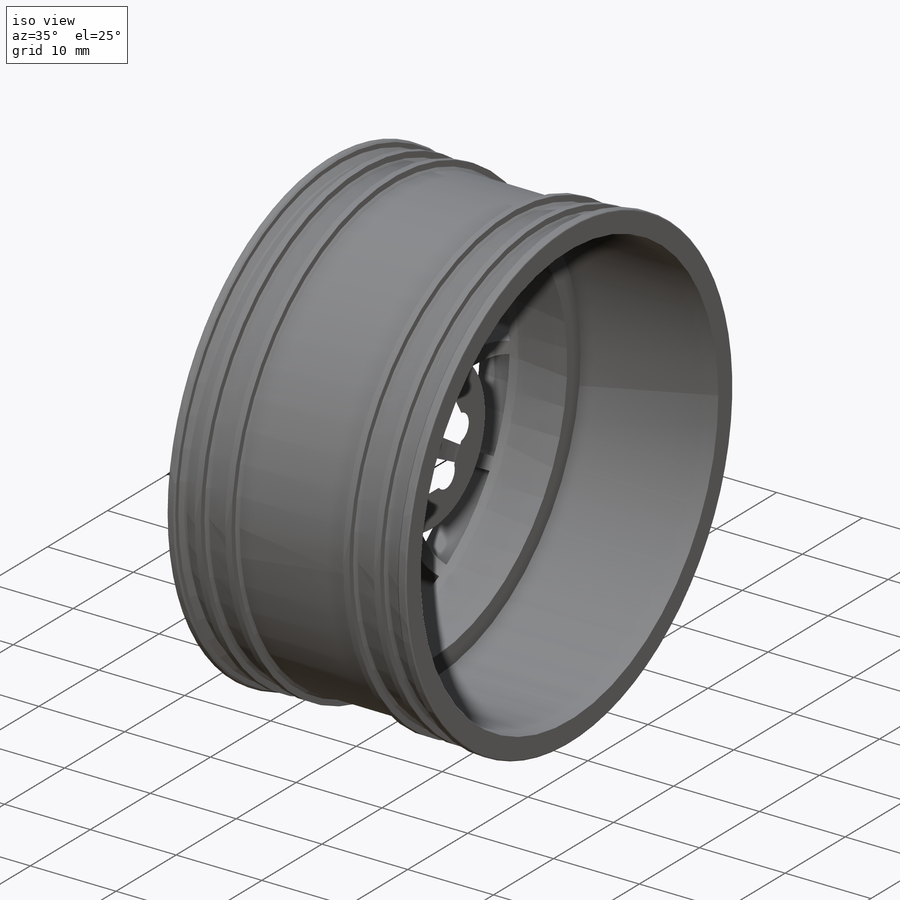
[diagram: iso view]
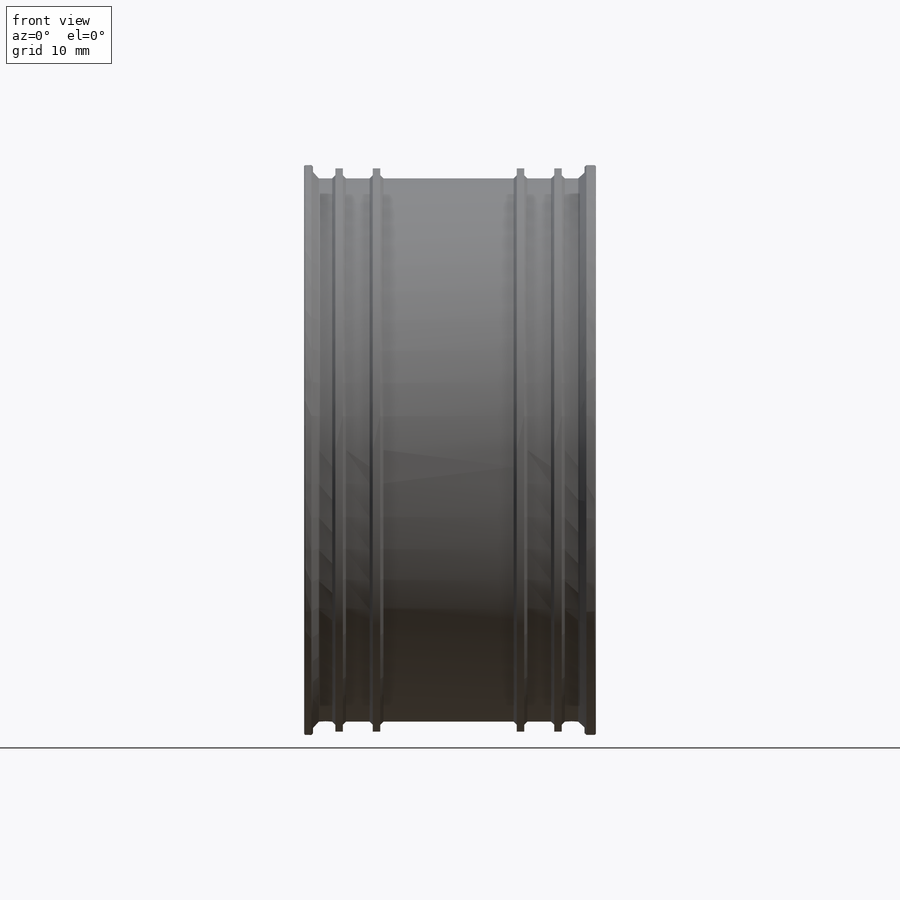
[diagram: front view]
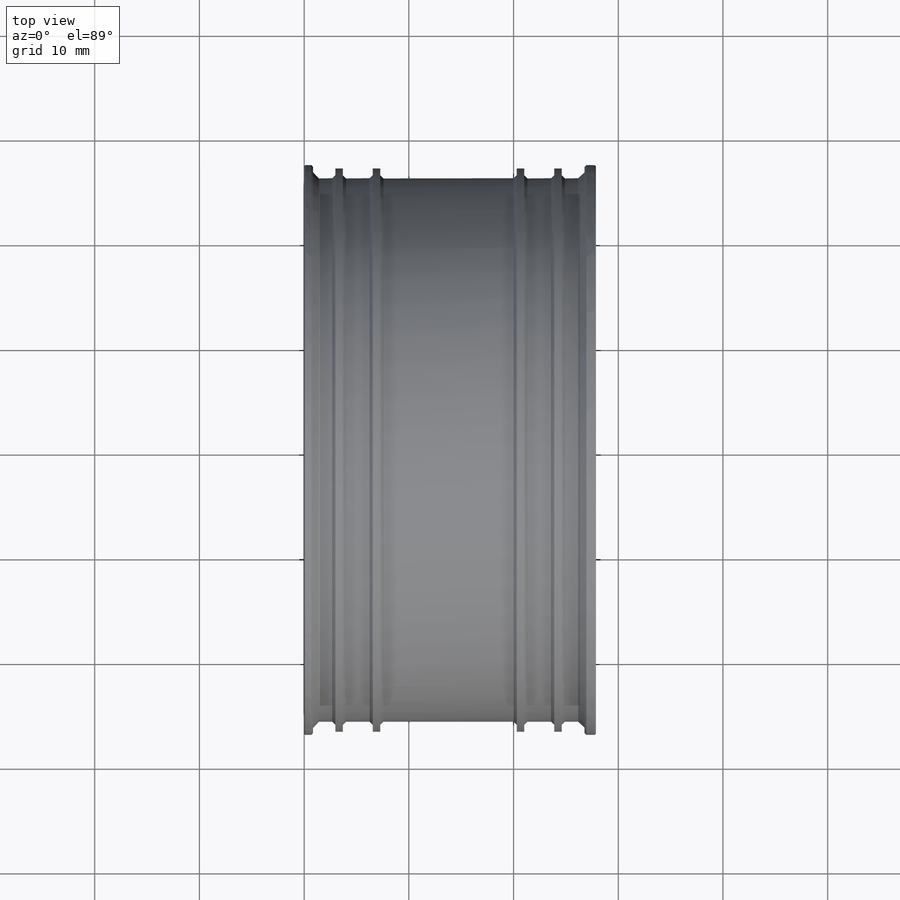
[diagram: top view]
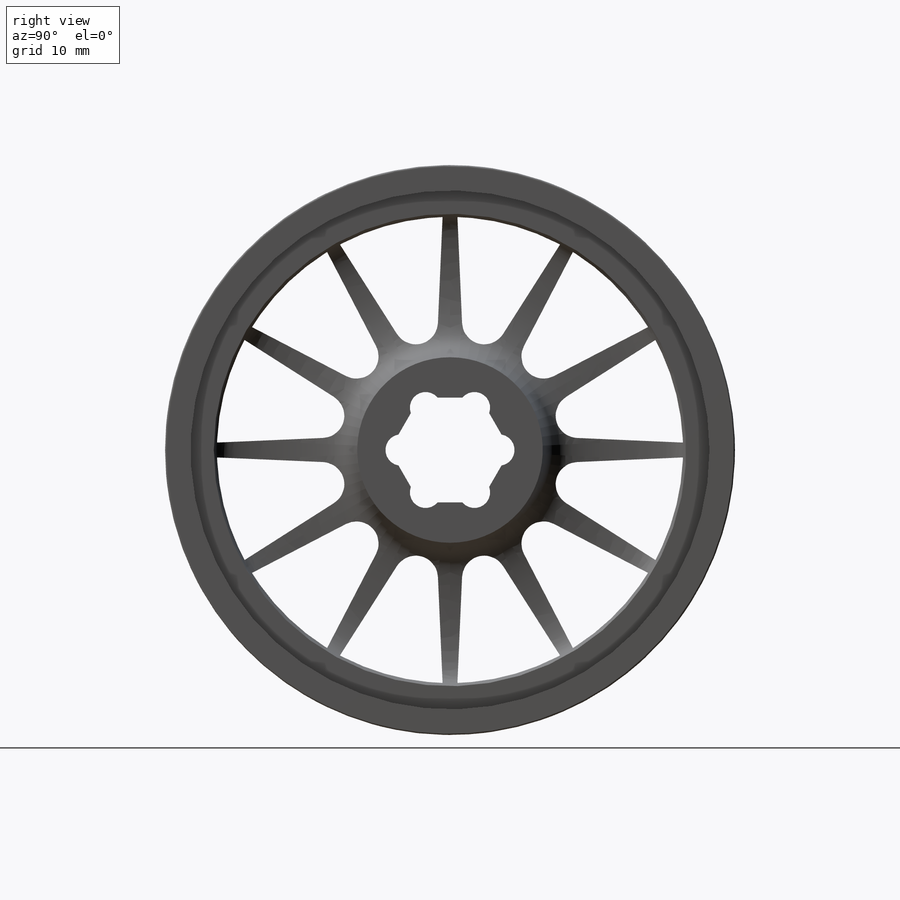
[diagram: right view]
SOLIDWORKS PART (.sldprt)
format: sldprt  version: not decoded by parser v0  size: 2,406,400 bytes
history: native  units: mm
features: dome x351, sketch x11, cut_extrude x6, fillet x2, material x1, extrude x1, sweep x1 + 1 further entry (+10 scaffold rows collapsed)
feature tree (384):
  scaffold x10  (default folders/planes/origin — collapsed)
  material  "6061-T6 (SS)"
  "Annotations"  RD1=8mm RD2=47.625mm RD4=18.448701mm RD5=1.761048mm RD6=0.884766mm RD8=27.857143mm RD9=17.717379mm RD10=7.745821mm RD11=2.244998mm RD3=49.556665mm RD7=2.142857mm RD12=2.244998mm
  sketch  "Sketch4"  dims[D1=170.0mm]
  sketch  "Sketch1"  dims[D1=~33.830972mm]
  extrude  "Extrude1"  Depth=195mm
  sketch  "Sketch8"  dims[D1=~168.432994mm]
  sketch  "Sketch3"
  cut_extrude  "Extrude4"  Depth=112.4mm
  sketch  "Sketch2"  dims[c1.D1=15.0mm c1.D2=4.0mm c1.D3=~170.112926mm c1.D6=~73.624807mm c2.D1=~87.706638deg c2.D4=~80.782612mm c3.D4=2.5deg c3.D5=~80.214086mm c4.D5=2.5deg c4.D6=8.0mm c4.D4=~80.413312mm c5.D4=17.5deg c5.D5=~164.27988mm c6.D5=17.5deg c6.D6=71.0mm c6.D1=~140.662285deg c7.D1=12.0]
  cut_extrude  "Extrude3"  Depth=37mm
  sketch  "Sketch5"  dims[c1.D1=4.0mm c1.D2=4.0mm c1.D3=1.0mm c1.D4=1.0mm c1.D6=2.0mm c1.D7=2.0mm c1.D8=1.5mm c1.D13=2.0mm c1.D14=4.0mm c1.D15=2.0mm c1.D5=~6.879835mm c2.D4=170.0mm c2.D9=1.0mm c2.D10=45.0deg c3.D4=6.88mm c3.D8=25.0mm c3.D11=25.0mm c4.D4=5.0mm c4.D5=20.0mm c4.D12=35.0mm c4.D2=~2.731103mm c5.D2=45.0deg c5.D6=3.0mm c5.D7=15.0mm c5.D1=~153.163377deg]
  sketch  "revolvepath"  dims[D1=~137.486092mm]
  sweep  "Cut-Sweep1"
  fillet  "Fillet7"  Radius=4mm
  sketch  "Sketch9"
  cut_extrude  "Extrude8"  Depth=6.2mm
  sketch  "Sketch10"  dims[D1=56.0mm]
  cut_extrude  "Extrude9"  [1 undecoded]
  fillet  "Fillet8"  Radius=3.5mm
  sketch  "Sketch11"  dims[c1.D2=1.5mm c1.D1=10.0mm c2.D2=120.0deg c2.D3=120.0deg c3.D2=~149.966804deg]
  cut_extrude  "Extrude10"  Depth=4mm
  dome  "Dome2"  flange_len_value=0 Associativity_IDs=0mm
  dome  "441f0961-651f-49cb-9117-8f31b8b877ae"  Associativity_IDs=0mm flange_len_value=0
  dome  "29bc92b0-dcc1-4f03-993c-061ac77e1b1a"  Associativity_IDs=0mm flange_len_value=0
  dome  "d1274d9a-4b19-4a93-a6c9-308393655e5a"  Associativity_IDs=0mm flange_len_value=0
  dome  "686aff30-a80f-465a-bb3e-946cdc2581d9"  Associativity_IDs=0mm flange_len_value=0
  dome  "6bf76ad0-d751-44d5-badf-b3861506b027"  Associativity_IDs=0mm flange_len_value=0
  dome  "a5d04f46-f9f5-437d-baa5-b426f78a203f"  Associativity_IDs=0mm flange_len_value=0
  dome  "0c020333-fe93-491c-8d8d-36da5a8d959e"  Associativity_IDs=0mm flange_len_value=0
  dome  "642d2594-b939-400e-8481-eccdaaa43092"  Associativity_IDs=0mm flange_len_value=0
  dome  "f6b69932-7eee-450b-87f0-c99a79508fd7"  Associativity_IDs=0mm flange_len_value=0
  dome  "c349b4dd-7812-4419-9773-ee145f4e4651"  Associativity_IDs=0mm flange_len_value=0
  dome  "c6f015e3-48f5-4fc7-b5e1-688ad483d509"  Associativity_IDs=0mm flange_len_value=0
  dome  "c2b35939-13c7-4dd7-a8b6-46e214523427"  Associativity_IDs=0mm flange_len_value=0
  dome  "7e8419ec-de19-45f4-acdf-939b1d0114e2"  Associativity_IDs=0mm flange_len_value=0
  dome  "996d2459-04e3-457d-9d61-327625e0fcfa"  Associativity_IDs=0mm flange_len_value=0
  dome  "10cbfb27-530e-4e32-91f8-0297ef27286f"  Associativity_IDs=0mm flange_len_value=0
  dome  "6ce0f54d-8b11-40c5-bed7-20aae8880ab0"  Associativity_IDs=0mm flange_len_value=0
  dome  "b3d69100-b4dd-4a40-a3b0-3afe6f3f5f3d"  Associativity_IDs=0mm flange_len_value=0
  dome  "8b446f9a-0605-4b56-b435-a0f1dbd9d449"  Associativity_IDs=0mm flange_len_value=0
  dome  "8fb94fb5-51c3-414d-8ec2-e8d2f9eff810"  Associativity_IDs=0mm flange_len_value=0
  dome  "a3ca3d10-c192-4d10-aa91-f08ec35e1f8a"  Associativity_IDs=0mm flange_len_value=0
  dome  "b7ca735d-e5dd-4693-bbef-3c3eeb0a8c48"  Associativity_IDs=0mm flange_len_value=0
  dome  "7581d3fe-6caf-4d03-85a5-7d14cd81cb71"  Associativity_IDs=0mm flange_len_value=0
  dome  "b8ee996f-d79e-44b4-89d3-93804d2254ec"  Associativity_IDs=0mm flange_len_value=0
  dome  "0a65213a-ad6c-4ee9-88fc-85f67524a7c7"  Associativity_IDs=0mm flange_len_value=0
  dome  "01a3d823-4db5-4d63-9a71-027bc7e92ebf"  Associativity_IDs=0mm flange_len_value=0
  dome  "5ac466fc-19be-4218-8a12-f514a31bfdb5"  Associativity_IDs=0mm flange_len_value=0
  dome  "6d3b4367-b320-4597-88e8-1ec8715cedd2"  Associativity_IDs=0mm flange_len_value=0
  dome  "0098a1e7-0f93-40ff-89c3-a6abbb8216e0"  Associativity_IDs=0mm flange_len_value=0
  dome  "32c818c5-3953-4e36-a03f-cbe104db6e1a"  Associativity_IDs=0mm flange_len_value=0
  dome  "2325bd9b-d257-43e4-ae78-37c28ae0a234"  Associativity_IDs=0mm flange_len_value=0
  dome  "7fc22041-49a7-4c30-9b77-b0269f3ffb1b"  Associativity_IDs=0mm flange_len_value=0
  dome  "6ac564c5-d373-45a9-9a24-a36c74a3b0ce"  Associativity_IDs=0mm flange_len_value=0
  dome  "be69b98d-fe51-42c0-b9c4-7cfa3f238040"  Associativity_IDs=0mm flange_len_value=0
  dome  "b5d3738d-48ac-4cb9-9ea5-db590e04cb36"  Associativity_IDs=0mm flange_len_value=0
  dome  "8bc20a6c-3d10-4d04-9cb4-94fce7827ee9"  Associativity_IDs=0mm flange_len_value=0
  dome  "82fdf201-afe2-435b-b703-c1de3f0a6804"  Associativity_IDs=0mm flange_len_value=0
  dome  "62242794-c18a-4ec6-8522-430144617661"  Associativity_IDs=0mm flange_len_value=0
  dome  "9944f1d6-d8f9-43d1-8e72-abfad806cc72"  Associativity_IDs=0mm flange_len_value=0
  dome  "4b7526fb-70c3-4609-84d8-b86a3614cce3"  Associativity_IDs=0mm flange_len_value=0
  dome  "fd778161-2687-44e2-a3c4-1987d205c238"  Associativity_IDs=0mm flange_len_value=0
  dome  "e49001b8-1502-4e7d-b5b6-f72a32777cea"  Associativity_IDs=0mm flange_len_value=0
  dome  "0af3af82-3166-431f-b091-2009528ef33a"  Associativity_IDs=0mm flange_len_value=0
  dome  "c3145659-1cc5-4a2c-8b7d-520d1e343f59"  Associativity_IDs=0mm flange_len_value=0
  dome  "49ba60ca-8e3d-42fc-9431-8bc827b5c2b7"  Associativity_IDs=0mm flange_len_value=0
  dome  "56b14bf9-7e56-4ada-bd04-fd9a301b5e33"  Associativity_IDs=0mm flange_len_value=0
  dome  "d717c7b2-8ffe-4404-ac5b-6bc6ccd34232"  Associativity_IDs=0mm flange_len_value=0
  dome  "07ec9548-d183-4f5d-befa-ab3347766663"  Associativity_IDs=0mm flange_len_value=0
  dome  "d797b379-ff2a-4d49-ba77-77bfd585faf2"  Associativity_IDs=0mm flange_len_value=0
  dome  "ea0b18ba-e403-42ed-95c2-594196dec718"  Associativity_IDs=0mm flange_len_value=0
  dome  "41e03ef6-20ab-4c54-8114-964219d2c1e9"  Associativity_IDs=0mm flange_len_value=0
  dome  "b8f2c565-2882-422c-98ba-9d03910d1ad5"  Associativity_IDs=0mm flange_len_value=0
  dome  "93e6778b-b5de-4d69-abcf-6d1c4df73b0f"  Associativity_IDs=0mm flange_len_value=0
  dome  "c505cbed-9ded-4aff-933b-3b56120c1fbe"  Associativity_IDs=0mm flange_len_value=0
  dome  "ca823355-8a0c-4002-a038-5ecdc217e0d1"  Associativity_IDs=0mm flange_len_value=0
  dome  "c00fc655-1a37-4bc8-b3ee-25379f988daf"  Associativity_IDs=0mm flange_len_value=0
  dome  "06600932-f906-435e-8d5e-3bde551a4206"  Associativity_IDs=0mm flange_len_value=0
  dome  "903390b9-a987-4fce-891a-7173bedb5ebb"  Associativity_IDs=0mm flange_len_value=0
  dome  "1ef13777-858f-42a5-b838-eb694d75eea2"  Associativity_IDs=0mm flange_len_value=0
  dome  "f42d59cc-c0bc-499c-89f2-cf513d031512"  Associativity_IDs=0mm flange_len_value=0
  dome  "a5f93803-8979-4caf-bcee-9481e462a3a4"  Associativity_IDs=0mm flange_len_value=0
  dome  "f387ffbd-8663-4d9d-997e-e2b80b9c2c69"  Associativity_IDs=0mm flange_len_value=0
  dome  "72999618-668d-4c23-aadd-0dfb3ab83527"  Associativity_IDs=0mm flange_len_value=0
  dome  "cc5abce0-e4a8-4a4f-ad45-911fd0832419"  Associativity_IDs=0mm flange_len_value=0
  dome  "0da8d853-1dea-4a9c-ae7e-3f8c5680d90a"  Associativity_IDs=0mm flange_len_value=0
  dome  "283f8df6-041a-410b-b1a6-e34b71d293cf"  Associativity_IDs=0mm flange_len_value=0
  dome  "a3e21488-8924-4b42-a0f0-b9064b6ab2d7"  Associativity_IDs=0mm flange_len_value=0
  dome  "e4873eac-926e-47ec-8aab-56beeb6cff14"  Associativity_IDs=0mm flange_len_value=0
  dome  "b76baeea-ac96-417b-9749-19c78ddda954"  Associativity_IDs=0mm flange_len_value=0
  dome  "b8b8a1cf-7bd9-4dbe-96af-b6a144a624de"  Associativity_IDs=0mm flange_len_value=0
  dome  "cf157c49-9405-43d7-9368-be55cc509270"  Associativity_IDs=0mm flange_len_value=0
  dome  "1de3f1e8-79df-451a-95d6-58177a4c68cc"  Associativity_IDs=0mm flange_len_value=0
  dome  "e9d265a3-eb98-434f-bb6a-433797b671d4"  Associativity_IDs=0mm flange_len_value=0
  dome  "b7090a62-974b-4b87-81e7-996b2087cb2f"  Associativity_IDs=0mm flange_len_value=0
  dome  "31fed86a-ff44-44e4-8ba7-e50f70828e04"  Associativity_IDs=0mm flange_len_value=0
  dome  "edf19ac2-0f1e-4ba8-85a9-15eb5c229eb4"  Associativity_IDs=0mm flange_len_value=0
  dome  "39ed3134-75d8-44ef-9948-b30696e2050c"  Associativity_IDs=0mm flange_len_value=0
  dome  "471a8a43-c5c7-49c7-8239-05dc0572a477"  Associativity_IDs=0mm flange_len_value=0
  dome  "969de116-3b0d-401f-bfc8-2f3f058add09"  Associativity_IDs=0mm flange_len_value=0
  dome  "8ccba09d-495c-4ae9-aba5-9d0a17abd8af"  Associativity_IDs=0mm flange_len_value=0
  dome  "bc27af37-0ae6-452f-a703-1aef0196ff60"  Associativity_IDs=0mm flange_len_value=0
  dome  "162fcb3f-6faa-4e91-a4a8-8da13aef080c"  Associativity_IDs=0mm flange_len_value=0
  dome  "cc7f2f18-dec3-415f-b3f9-da241c9e8ef5"  Associativity_IDs=0mm flange_len_value=0
  dome  "91bcac9e-9887-4e4d-941c-eadfc649e533"  Associativity_IDs=0mm flange_len_value=0
  dome  "59ee2f94-d545-40de-a1d7-b86741fe68d1"  Associativity_IDs=0mm flange_len_value=0
  dome  "f1962a46-ca4c-422c-ba8a-bad4897affaf"  Associativity_IDs=0mm flange_len_value=0
  dome  "fc059e6c-db24-46f4-a5b9-b049d86aaba6"  Associativity_IDs=0mm flange_len_value=0
  dome  "6785821a-eb6b-4d21-8faa-b9f2163c29aa"  Associativity_IDs=0mm flange_len_value=0
  dome  "25e646d0-328e-40be-8b38-b1056238377f"  Associativity_IDs=0mm flange_len_value=0
  dome  "9f2774cc-542c-45b0-891a-7f713f0cf09e"  Associativity_IDs=0mm flange_len_value=0
  dome  "ffdeb323-6ee5-4f3b-acd0-f56884521c67"  Associativity_IDs=0mm flange_len_value=0
  dome  "3bae2f52-09bb-404a-b17c-11803787131c"  Associativity_IDs=0mm flange_len_value=0
  dome  "64647915-387c-4e53-9620-8a8c85506060"  Associativity_IDs=0mm flange_len_value=0
  dome  "3c3663fe-16d1-4737-b52e-c93e82196a2d"  Associativity_IDs=0mm flange_len_value=0
  dome  "a4b1bc25-9897-4faa-abe6-7ecde77d5d8e"  Associativity_IDs=0mm flange_len_value=0
  dome  "63489c61-a2b2-46c7-bd80-287c6843581d"  Associativity_IDs=0mm flange_len_value=0
  dome  "d8d33704-528d-4082-a717-1db611d65ba8"  Associativity_IDs=0mm flange_len_value=0
  dome  "699e8c25-399b-4104-b0a9-b5f707508785"  Associativity_IDs=0mm flange_len_value=0
  dome  "beb2d40f-a84a-4def-9faa-fb2374c85f49"  Associativity_IDs=0mm flange_len_value=0
  dome  "83ae9b1e-c9c8-4a9b-a584-05a08fa3d7ae"  Associativity_IDs=0mm flange_len_value=0
  dome  "482c8201-d177-4d7d-a3a1-7cad1b56b0c1"  Associativity_IDs=0mm flange_len_value=0
  dome  "2ee4ef51-26f1-44a9-9831-44979aefde65"  Associativity_IDs=0mm flange_len_value=0
  dome  "1d25cd8c-e72a-46cd-8b12-b5ec3fc27b8f"  Associativity_IDs=0mm flange_len_value=0
  dome  "500ea407-a2ec-4212-aa6d-bfb0b9c854c5"  Associativity_IDs=0mm flange_len_value=0
  dome  "5db15bb0-8fab-4d65-9bf3-55d7de23040b"  Associativity_IDs=0mm flange_len_value=0
  dome  "2f6995aa-c51b-49c3-ba2a-68eb4d2c70e1"  Associativity_IDs=0mm flange_len_value=0
  dome  "b85c4857-20f6-4fcd-88eb-5e9e796862a8"  Associativity_IDs=0mm flange_len_value=0
  dome  "0c8acf0f-6dc2-415a-8c62-7e69c5d9e27c"  Associativity_IDs=0mm flange_len_value=0
  dome  "437c21f1-4c22-43e2-8a06-c4f1769b0442"  Associativity_IDs=0mm flange_len_value=0
  dome  "4ff89be2-81ad-4998-9eeb-a3b1129678a3"  Associativity_IDs=0mm flange_len_value=0
  dome  "ba28c147-be64-42b4-bafc-c7ed1f0e8b3d"  Associativity_IDs=0mm flange_len_value=0
  dome  "b41092dd-bb42-42e1-a199-14f1c67674e1"  Associativity_IDs=0mm flange_len_value=0
  dome  "27dabea9-8358-4146-9b39-c5ed8007bdb6"  Associativity_IDs=0mm flange_len_value=0
  dome  "d070a5e5-41d7-4907-ab62-4ebc9139b7dd"  Associativity_IDs=0mm flange_len_value=0
  dome  "19bf7dd7-f195-4b85-964e-5339565fd430"  Associativity_IDs=0mm flange_len_value=0
  dome  "47788ce8-942e-4bb8-a875-9da275c4a957"  Associativity_IDs=0mm flange_len_value=0
  dome  "c7373810-fda6-4a64-a95a-9a1fca1371c2"  Associativity_IDs=0mm flange_len_value=0
  dome  "c69d8074-7175-4b89-887d-64a87fafc2b5"  Associativity_IDs=0mm flange_len_value=0
  dome  "f362b529-a46b-473f-a77b-1f9041fb0147"  Associativity_IDs=0mm flange_len_value=0
  dome  "af06cd6a-0e53-4bdc-933a-ed45a34a9372"  Associativity_IDs=0mm flange_len_value=0
  dome  "bf3c2190-df5d-4e03-a245-299a6bedf41b"  Associativity_IDs=0mm flange_len_value=0
  dome  "ded40ff7-2f0f-4e11-b214-20a9c5cd97a6"  Associativity_IDs=0mm flange_len_value=0
  dome  "3d0e49a7-a501-4b56-abf2-51d0963e3a0f"  Associativity_IDs=0mm flange_len_value=0
  dome  "f82c51ab-58e7-454c-a3bd-c41b1b8aee28"  Associativity_IDs=0mm flange_len_value=0
  dome  "0249e38c-eb24-48be-94db-8124e8c5b1c2"  Associativity_IDs=0mm flange_len_value=0
  dome  "c75b7971-e962-4879-b21a-4e6a2d1b233c"  Associativity_IDs=0mm flange_len_value=0
  dome  "65d3e1f7-b728-48f8-b8db-4af664b95130"  Associativity_IDs=0mm flange_len_value=0
  dome  "2ce1f7a0-5be0-40d2-944b-1ef3d81038af"  Associativity_IDs=0mm flange_len_value=0
  dome  "aecf825c-0a53-4f8d-8f98-7f6aef0f1726"  Associativity_IDs=0mm flange_len_value=0
  dome  "ba9884f0-45a0-4940-abd5-f43be0029360"  Associativity_IDs=0mm flange_len_value=0
  dome  "b7945039-c006-42dd-b951-d04462b8070d"  Associativity_IDs=0mm flange_len_value=0
  dome  "b181c55a-4849-4170-ba62-89c1c1dc11b6"  Associativity_IDs=0mm flange_len_value=0
  dome  "d61998cb-2904-4840-b4e1-d65fae3f7e2c"  Associativity_IDs=0mm flange_len_value=0
  dome  "dc9f1f0d-e962-4a38-b0c6-92f447196386"  Associativity_IDs=0mm flange_len_value=0
  dome  "aafb1005-1c6d-48d8-ba75-09abb676441a"  Associativity_IDs=0mm flange_len_value=0
  dome  "5888be56-1243-41a5-85e6-e9eb34d71389"  Associativity_IDs=0mm flange_len_value=0
  dome  "aa404a5a-752f-445b-b96f-0d1f97bdaefb"  Associativity_IDs=0mm flange_len_value=0
  dome  "dccc85ee-7130-4e20-a383-e5918c01c93a"  Associativity_IDs=0mm flange_len_value=0
  dome  "0cade5d8-f811-4347-a73b-10bb965cce87"  Associativity_IDs=0mm flange_len_value=0
  dome  "e5df463e-bec1-437b-91b8-687ea456d937"  Associativity_IDs=0mm flange_len_value=0
  dome  "b665081c-e640-4502-bb8c-601cccf2b603"  Associativity_IDs=0mm flange_len_value=0
  dome  "c2ff0c81-c3dc-4a3c-856d-17fcdc936166"  Associativity_IDs=0mm flange_len_value=0
  dome  "e59db2f6-3884-4a55-b984-24f8036b0dca"  Associativity_IDs=0mm flange_len_value=0
  dome  "b6d534b0-e8a0-478f-9c5d-23eef08c9ec4"  Associativity_IDs=0mm flange_len_value=0
  dome  "479ea3fa-d98c-47b8-815c-1488122a8aac"  Associativity_IDs=0mm flange_len_value=0
  dome  "07052bf5-87f8-4091-bca0-796de6f344b2"  Associativity_IDs=0mm flange_len_value=0
  dome  "39754f2d-7478-4687-9c7f-c552b298bad9"  Associativity_IDs=0mm flange_len_value=0
  dome  "3775f64c-ce19-4e3d-afb7-6b72fd8eab62"  Associativity_IDs=0mm flange_len_value=0
  dome  "0481ff18-d4b3-4a90-9280-e977768df6a0"  Associativity_IDs=0mm flange_len_value=0
  dome  "60e7ca07-83b0-46c4-bda7-cf43ff00e9fd"  Associativity_IDs=0mm flange_len_value=0
  dome  "e47c5ab9-e9c7-4372-9fb9-74f0fd179432"  Associativity_IDs=0mm flange_len_value=0
  dome  "4b33470f-ef3d-4930-8798-4bdd393cd130"  Associativity_IDs=0mm flange_len_value=0
  dome  "96ecf9dc-a1f3-41a0-951e-f6faa2eec589"  Associativity_IDs=0mm flange_len_value=0
  dome  "81d678b5-0bae-4b0c-b148-34d057ed0246"  Associativity_IDs=0mm flange_len_value=0
  dome  "8ad9265d-f78a-433e-b222-7ec303bde5a4"  Associativity_IDs=0mm flange_len_value=0
  dome  "ee286b84-69e5-43a9-beed-ca198a3e814c"  Associativity_IDs=0mm flange_len_value=0
  dome  "406739cf-d594-45fd-89b3-af952ae7546a"  Associativity_IDs=0mm flange_len_value=0
  dome  "3246cbbd-1744-432e-8100-adf713ef2653"  Associativity_IDs=0mm flange_len_value=0
  dome  "65dade69-101b-4480-b803-345acaa33fbd"  Associativity_IDs=0mm flange_len_value=0
  dome  "403a1838-f884-4e20-b94b-bcf5400a3305"  Associativity_IDs=0mm flange_len_value=0
  dome  "ccb6bcb2-ac59-49e0-adb8-aacc2e8845d2"  Associativity_IDs=0mm flange_len_value=0
  dome  "cd40c639-5d88-45ab-b38f-e09956da5e38"  Associativity_IDs=0mm flange_len_value=0
  dome  "89f526ca-863a-4796-9f90-457919c79979"  Associativity_IDs=0mm flange_len_value=0
  dome  "967f35ae-87af-4efc-9c27-8d60d0b270b8"  Associativity_IDs=0mm flange_len_value=0
  dome  "4d749677-8879-419a-be0a-2b9f638a0eab"  Associativity_IDs=0mm flange_len_value=0
  dome  "7701afbf-38be-4909-926a-6d222ddea066"  Associativity_IDs=0mm flange_len_value=0
  dome  "a581ef31-b562-4bee-a598-66646cdf7947"  Associativity_IDs=0mm flange_len_value=0
  dome  "4e3e0ace-986d-44a5-b266-d10de512a0ca"  Associativity_IDs=0mm flange_len_value=0
  dome  "e5f6495e-b898-455f-825f-f2383dd0564f"  Associativity_IDs=0mm flange_len_value=0
  dome  "86b660d4-b6c1-4d32-a8b1-cd58638fd16b"  Associativity_IDs=0mm flange_len_value=0
  dome  "31f40323-ee5c-4adf-8bbc-383524d45e48"  Associativity_IDs=0mm flange_len_value=0
  dome  "4cf7fac6-11bd-4901-a059-1c0e634c2a7f"  Associativity_IDs=0mm flange_len_value=0
  dome  "ae702499-370c-4675-a0f6-c352bb0add83"  Associativity_IDs=0mm flange_len_value=0
  dome  "e5acde5d-26ce-4153-8150-95f56cfb16f9"  Associativity_IDs=0mm flange_len_value=0
  dome  "9c83a7a6-00c0-4752-908b-96799ca271c1"  Associativity_IDs=0mm flange_len_value=0
  dome  "d851f38f-2fac-456c-baf6-0556866d618f"  Associativity_IDs=0mm flange_len_value=0
  dome  "71dd1f68-0031-47a3-a0c4-ac3587d44429"  Associativity_IDs=0mm flange_len_value=0
  dome  "c81e705d-a6f9-4699-9570-61540d22eb47"  Associativity_IDs=0mm flange_len_value=0
  dome  "340f8b54-8e83-4d98-9c81-4f804f8a1b9a"  Associativity_IDs=0mm flange_len_value=0
  dome  "7ba69d5b-b546-40ef-af30-6c6ae4c3ab97"  Associativity_IDs=0mm flange_len_value=0
  dome  "dc060c91-1281-448a-a3b2-00783764057c"  Associativity_IDs=0mm flange_len_value=0
  dome  "6b66c9e8-32a9-4ca2-a6da-d645803ad0fd"  Associativity_IDs=0mm flange_len_value=0
  dome  "eaca6148-2fc1-40fb-8a74-46d45eb2b93c"  Associativity_IDs=0mm flange_len_value=0
  dome  "e4cb7519-8422-45e1-a953-9267d338b7ee"  Associativity_IDs=0mm flange_len_value=0
  dome  "afbe3359-9f72-474d-89fb-d6d285315991"  Associativity_IDs=0mm flange_len_value=0
  dome  "a58ed0bc-febc-49d7-86f1-04e3a93bca13"  Associativity_IDs=0mm flange_len_value=0
  dome  "693b4faa-12aa-480a-9520-35a6cb0fadf0"  Associativity_IDs=0mm flange_len_value=0
  dome  "d2f29cf7-bb78-45d7-bad6-d680ea80f1de"  Associativity_IDs=0mm flange_len_value=0
  dome  "03f24fc4-9fc9-4805-a32a-2ef0622b916e"  Associativity_IDs=0mm flange_len_value=0
  dome  "0c97b854-fe3e-4af2-99a3-bac61600bf77"  Associativity_IDs=0mm flange_len_value=0
  dome  "fec3cc35-6d79-4a14-9300-86983a7efa3a"  Associativity_IDs=0mm flange_len_value=0
  dome  "5f82e508-d8b7-4ead-bcbe-14488bffc410"  Associativity_IDs=0mm flange_len_value=0
  dome  "f6750b8e-268e-4529-8be5-2be72f51cb1c"  Associativity_IDs=0mm flange_len_value=0
  dome  "7e7819ec-0db5-4115-a28e-3f4d031739b7"  Associativity_IDs=0mm flange_len_value=0
  dome  "9fdfe1fb-195d-4d8f-b071-c2b0e1f2b30c"  Associativity_IDs=0mm flange_len_value=0
  dome  "28c60bab-e588-4232-b188-1e6141a176d9"  Associativity_IDs=0mm flange_len_value=0
  dome  "a42b29d1-42ae-4c46-8b39-be4c93f84182"  Associativity_IDs=0mm flange_len_value=0
  dome  "e9c05e7c-0452-488c-a273-01118b847bcc"  Associativity_IDs=0mm flange_len_value=0
  dome  "56982de3-6ff1-408c-8a0b-49088c609906"  Associativity_IDs=0mm flange_len_value=0
  dome  "4d48700a-70e1-483b-94e6-1bfb89702540"  Associativity_IDs=0mm flange_len_value=0
  dome  "23cc0ea5-3112-4364-873f-20456c4cc19c"  Associativity_IDs=0mm flange_len_value=0
  dome  "4da7dda9-7492-4007-9a4e-d30235dbf4b6"  Associativity_IDs=0mm flange_len_value=0
  dome  "28f43704-c1d7-4424-b0da-5bb4eaa4576f"  Associativity_IDs=0mm flange_len_value=0
  dome  "e4668f4b-c65f-4bd6-9879-26c124946063"  Associativity_IDs=0mm flange_len_value=0
  dome  "99880c3f-5fd1-452c-aae2-7b3ae62927d5"  Associativity_IDs=0mm flange_len_value=0
  dome  "bfa6ff67-0e92-4a94-933b-5d8a9cffd37f"  Associativity_IDs=0mm flange_len_value=0
  dome  "b939a791-8343-4b61-8c0b-e9b2b3e7268d"  Associativity_IDs=0mm flange_len_value=0
  dome  "a4e14716-adec-4e79-a71d-a5c232fdd6a3"  Associativity_IDs=0mm flange_len_value=0
  dome  "a4028422-e4a3-4861-bedc-2d41756c4f70"  Associativity_IDs=0mm flange_len_value=0
  dome  "814ebc05-8989-4fb5-a780-5f951c347358"  Associativity_IDs=0mm flange_len_value=0
  dome  "a568fbcc-66d0-4be7-8163-c39be2fc159d"  Associativity_IDs=0mm flange_len_value=0
  dome  "88fa614d-907a-4bf7-8cc9-cf7741bf5757"  Associativity_IDs=0mm flange_len_value=0
  dome  "a35e6902-1162-4c88-ae95-7e1860aee170"  Associativity_IDs=0mm flange_len_value=0
  dome  "83e8e7e7-26b6-46f3-8130-c0465fdd8e04"  Associativity_IDs=0mm flange_len_value=0
  dome  "71e86395-433b-41f0-b0f5-730ded40633b"  Associativity_IDs=0mm flange_len_value=0
  dome  "cc04a2c9-431b-4f1f-acc2-3c360c2e6642"  Associativity_IDs=0mm flange_len_value=0
  dome  "92ba3a5f-59f1-4401-9d92-ae582c4e58f5"  Associativity_IDs=0mm flange_len_value=0
  dome  "841aeb96-2537-4ae8-a403-01ad1534dcd9"  Associativity_IDs=0mm flange_len_value=0
  dome  "76499e1d-9c69-4660-b05f-022aea6246e1"  Associativity_IDs=0mm flange_len_value=0
  dome  "64b4de32-848b-4488-ba1c-4f981c04c7e0"  Associativity_IDs=0mm flange_len_value=0
  dome  "9cc12157-e711-439e-8419-034bcbeb3d2f"  Associativity_IDs=0mm flange_len_value=0
  dome  "091970e5-e551-4602-9d74-93074b57925e"  Associativity_IDs=0mm flange_len_value=0
  dome  "84beee77-6806-4908-babd-837173622955"  Associativity_IDs=0mm flange_len_value=0
  dome  "435dd9ad-a370-45ec-a0b6-1443d1c4a14e"  Associativity_IDs=0mm flange_len_value=0
  dome  "d2b58969-b7dc-4778-b7b6-55d88b526033"  Associativity_IDs=0mm flange_len_value=0
  dome  "1fdb41a4-a03b-4a5c-8ee6-6a381ec5e905"  Associativity_IDs=0mm flange_len_value=0
  dome  "65d51043-1d92-4dcb-8ac4-6bff38d8ca2e"  Associativity_IDs=0mm flange_len_value=0
  dome  "07aadc09-ef0c-4c62-8da3-4bddb8555bc7"  Associativity_IDs=0mm flange_len_value=0
  dome  "e4a65972-e4c8-43b9-b1c4-db32362281b4"  Associativity_IDs=0mm flange_len_value=0
  dome  "5edd8fb4-f926-455d-b8c5-59f395a906f7"  Associativity_IDs=0mm flange_len_value=0
  dome  "14aee470-69ca-4902-89d9-0b7299b58c79"  Associativity_IDs=0mm flange_len_value=0
  dome  "cdb754e9-9631-4122-a01d-bf2381de9e45"  Associativity_IDs=0mm flange_len_value=0
  dome  "f76d90a6-5672-47bf-ab8e-e3511b788641"  Associativity_IDs=0mm flange_len_value=0
  dome  "c19b28c9-2792-4427-b1ab-6e2cf0c8d194"  Associativity_IDs=0mm flange_len_value=0
  dome  "cbf4f161-2549-47ce-bff4-d4a96ecc7f43"  Associativity_IDs=0mm flange_len_value=0
  dome  "9a4e2c75-cd90-45cd-9da3-95ede3987b1d"  Associativity_IDs=0mm flange_len_value=0
  dome  "db9b9add-7c89-458b-8ba9-5e2afe186fbc"  Associativity_IDs=0mm flange_len_value=0
  dome  "74c4f96e-a32c-4a56-a4ac-41b837284153"  Associativity_IDs=0mm flange_len_value=0
  dome  "424853f0-6cf2-47c1-be6e-f8e26a0fa703"  Associativity_IDs=0mm flange_len_value=0
  dome  "2297f1fe-6c77-4391-a5dd-ff819535dfd4"  Associativity_IDs=0mm flange_len_value=0
  dome  "52eea0d0-80c6-4dd9-a41d-aa599d8e66d6"  Associativity_IDs=0mm flange_len_value=0
  dome  "ffde9281-863b-4384-b94d-3f9a8f8a7204"  Associativity_IDs=0mm flange_len_value=0
  dome  "d866fa01-1dd0-4055-a433-7e25269363eb"  Associativity_IDs=0mm flange_len_value=0
  dome  "ef49f859-13a8-4df2-94de-28e799da43c1"  Associativity_IDs=0mm flange_len_value=0
  dome  "43488f2e-07b3-4f65-be9c-cb899d09b446"  Associativity_IDs=0mm flange_len_value=0
  dome  "ae8bade7-f887-4bb9-a2d7-5b6049579b5d"  Associativity_IDs=0mm flange_len_value=0
  dome  "ff93c9bf-60fb-46e2-8abf-563e217454b6"  Associativity_IDs=0mm flange_len_value=0
  dome  "6f45bc8f-7ce3-441e-828d-ebdaad0feac3"  Associativity_IDs=0mm flange_len_value=0
  dome  "2ec53e2b-1b63-4dfb-af8c-0af2eebee9e8"  Associativity_IDs=0mm flange_len_value=0
  dome  "a63fd668-c14e-4567-abf6-40daa59a8dc2"  Associativity_IDs=0mm flange_len_value=0
  dome  "bab4af48-3869-4451-809d-c0efe4e9ff91"  Associativity_IDs=0mm flange_len_value=0
  dome  "5e8d9a1c-ef7b-4496-90b3-98db5be75aee"  Associativity_IDs=0mm flange_len_value=0
  dome  "5902096f-2fdd-4a3e-83bd-ad210ec8878b"  Associativity_IDs=0mm flange_len_value=0
  dome  "2f454ccf-b98f-4a78-8eb4-c35d3536556e"  Associativity_IDs=0mm flange_len_value=0
  dome  "216ba27c-ba8a-4852-a0e5-60a301d3ba11"  Associativity_IDs=0mm flange_len_value=0
  dome  "d8811f3b-01d9-4755-9f50-c24e11ba5f61"  Associativity_IDs=0mm flange_len_value=0
  dome  "d8741b3c-5750-43a9-b235-6d9dec3086c5"  Associativity_IDs=0mm flange_len_value=0
  dome  "72315387-00f9-46d6-8080-c955ae1d6a49"  Associativity_IDs=0mm flange_len_value=0
  dome  "ffcc6378-4494-41ad-8be1-971d4d4ca178"  Associativity_IDs=0mm flange_len_value=0
  dome  "ddba397a-64f9-4118-83f2-a1da8a0d27eb"  Associativity_IDs=0mm flange_len_value=0
  dome  "c073310c-50d3-42de-a2be-6f039fdc0c59"  Associativity_IDs=0mm flange_len_value=0
  dome  "1a3b5005-2e35-4ded-8296-a35e46e1d2ab"  Associativity_IDs=0mm flange_len_value=0
  dome  "3aa9c9d1-8ecf-41d8-a46c-bd199836a455"  Associativity_IDs=0mm flange_len_value=0
  dome  "2ed61d69-1714-4848-bc6b-f56f1104584f"  Associativity_IDs=0mm flange_len_value=0
  dome  "efac2ce2-6faa-4b66-9956-df7ef8875bd4"  Associativity_IDs=0mm flange_len_value=0
  dome  "8e1d47b7-04d5-4b8f-9b90-52a29d7533b2"  Associativity_IDs=0mm flange_len_value=0
  dome  "3c2e9be3-be13-4a0a-a708-ceca863a8836"  Associativity_IDs=0mm flange_len_value=0
  dome  "563ef59e-3aaf-4cf5-ba89-2d7dedec9e54"  Associativity_IDs=0mm flange_len_value=0
  dome  "4f0823e9-3512-41fe-b4b2-ce144638acf0"  Associativity_IDs=0mm flange_len_value=0
  dome  "da8f8ac3-d19f-4a7f-9bde-859888a71fa6"  Associativity_IDs=0mm flange_len_value=0
  dome  "150d5aca-998b-4897-bce5-d7af3fe0a4fe"  Associativity_IDs=0mm flange_len_value=0
  dome  "2dc83c88-c7c4-42c0-85b7-f29c6c7bf9a0"  Associativity_IDs=0mm flange_len_value=0
  dome  "7c33ab76-c0d2-4d39-9b57-314f47fb0941"  Associativity_IDs=0mm flange_len_value=0
  dome  "742e328e-83fe-4f6e-8f95-281982aeb4d6"  Associativity_IDs=0mm flange_len_value=0
  dome  "e936ff49-eb6e-46c5-a668-56f0cca39c35"  Associativity_IDs=0mm flange_len_value=0
  dome  "f2940a80-4957-4499-aac0-8fe7092d90ad"  Associativity_IDs=0mm flange_len_value=0
  dome  "272c14bf-753f-4283-8171-f4471e7949ce"  Associativity_IDs=0mm flange_len_value=0
  dome  "83273f10-519f-4c3e-b304-d781912ffe81"  Associativity_IDs=0mm flange_len_value=0
  dome  "4840b1bd-2edf-47b9-8fa7-8da108402cd7"  Associativity_IDs=0mm flange_len_value=0
  dome  "925b58f9-e9b7-4669-93e6-f871ec6bfa72"  Associativity_IDs=0mm flange_len_value=0
  dome  "3ec3ce3a-731f-4901-8418-4bcc7d851c05"  Associativity_IDs=0mm flange_len_value=0
  dome  "4551add7-90ab-440a-8f64-ac1c223aa260"  Associativity_IDs=0mm flange_len_value=0
  dome  "01b9b658-26d2-4576-9c6e-35f278170efc"  Associativity_IDs=0mm flange_len_value=0
  dome  "3b0a48cb-ef51-476f-a164-e17470800e67"  Associativity_IDs=0mm flange_len_value=0
  dome  "ed53c4fe-3956-471b-aec7-57825b07a2e3"  Associativity_IDs=0mm flange_len_value=0
  dome  "92782870-b4ed-4381-8c91-170e87d8ef21"  Associativity_IDs=0mm flange_len_value=0
  dome  "fa321bba-f153-4ef0-b670-dba182ac0f29"  Associativity_IDs=0mm flange_len_value=0
  dome  "b788b3fe-0c93-46b4-92f6-fa60643d0eb4"  Associativity_IDs=0mm flange_len_value=0
  dome  "3d65f92f-55e3-4299-912e-3c1a04626c5a"  Associativity_IDs=0mm flange_len_value=0
  dome  "49399384-f62b-4db3-88f3-9a254bfd6b64"  Associativity_IDs=0mm flange_len_value=0
  dome  "b7c16a72-248e-4759-9450-fabf999d49b6"  Associativity_IDs=0mm flange_len_value=0
  dome  "7c29a20a-6601-4a4c-ad67-961303a5156f"  Associativity_IDs=0mm flange_len_value=0
  dome  "3057e274-d76a-469a-842e-962587d96a99"  Associativity_IDs=0mm flange_len_value=0
  dome  "b82344c8-babb-4669-933e-8a7ffa6c09a6"  Associativity_IDs=0mm flange_len_value=0
  dome  "753d0a6d-641b-4192-8e51-9ddf51946903"  Associativity_IDs=0mm flange_len_value=0
  dome  "9e000451-dfa0-4f49-af42-328582af0525"  Associativity_IDs=0mm flange_len_value=0
  dome  "6e431ab6-d2d9-4068-819e-291c9e4b49b9"  Associativity_IDs=0mm flange_len_value=0
  dome  "7a21cb6d-0e13-4c9e-a58b-b1591f4e075a"  Associativity_IDs=0mm flange_len_value=0
  dome  "925937df-ed0e-429e-a3fb-b0554be4f416"  Associativity_IDs=0mm flange_len_value=0
  dome  "9decff43-2a39-4ebf-828c-2fe45cccf445"  Associativity_IDs=0mm flange_len_value=0
  dome  "59fe6da9-b5ab-4e46-a460-d25e4d455907"  Associativity_IDs=0mm flange_len_value=0
  dome  "b354c3da-ebf9-44dc-8ee2-234fe0f45b21"  Associativity_IDs=0mm flange_len_value=0
  dome  "98b08337-47c0-4777-be1f-4756a8ef3d27"  Associativity_IDs=0mm flange_len_value=0
  dome  "7c186641-590f-472b-82be-988af323dfe7"  Associativity_IDs=0mm flange_len_value=0
  dome  "668c277d-a24e-434e-a1b3-36532f38e7b2"  Associativity_IDs=0mm flange_len_value=0
  dome  "851baca5-03fd-4dcb-8340-15f4f3cd4054"  Associativity_IDs=0mm flange_len_value=0
  dome  "49b38d65-05a4-4017-956e-9af5c27c11bb"  Associativity_IDs=0mm flange_len_value=0
  dome  "bf9c4f66-7e27-4326-93fc-dc3be1f80938"  Associativity_IDs=0mm flange_len_value=0
  dome  "144ecbd9-e5f7-4c63-b2a8-5e6e60015b0a"  Associativity_IDs=0mm flange_len_value=0
  dome  "1979ac02-fb33-4fb5-aad3-6cf4d35785fb"  Associativity_IDs=0mm flange_len_value=0
  dome  "b0b2ee5d-d053-4b5e-9c66-07a796be6f2f"  Associativity_IDs=0mm flange_len_value=0
  dome  "641b3223-0aef-4291-92f0-e94fee8ea38b"  Associativity_IDs=0mm flange_len_value=0
  dome  "f51cd12f-5bcb-4ca5-8dce-5bd2d4a121ac"  Associativity_IDs=0mm flange_len_value=0
  dome  "32d1c90f-33f6-4e95-a702-ba7e34d40ff3"  Associativity_IDs=0mm flange_len_value=0
  dome  "ccf083ff-09c1-429e-90d1-350890b3ef46"  Associativity_IDs=0mm flange_len_value=0
  dome  "7ceb591b-e5f6-48ac-be79-8b2919e54243"  Associativity_IDs=0mm flange_len_value=0
  dome  "19024c12-7773-4d39-ac58-ee04683dd722"  Associativity_IDs=0mm flange_len_value=0
  dome  "c29037d0-9a07-415e-bce9-f5c291710059"  Associativity_IDs=0mm flange_len_value=0
  dome  "4f14c40f-9e5d-491b-a2b6-c6c798e75fba"  Associativity_IDs=0mm flange_len_value=0
  dome  "bfa35f97-df79-459e-b99d-a54f96761dd0"  Associativity_IDs=0mm flange_len_value=0
  dome  "a5c5034d-3b23-47da-8c3a-dbd19eda227c"  Associativity_IDs=0mm flange_len_value=0
  dome  "539df625-5bd6-4c40-812a-4aa5ce34d48e"  Associativity_IDs=0mm flange_len_value=0
  dome  "395796dd-5491-47d8-af48-0b5381d8d7ce"  Associativity_IDs=0mm flange_len_value=0
  dome  "737a3ced-6f08-46c4-840c-ffe21d9a4945"  Associativity_IDs=0mm flange_len_value=0
  dome  "2b59a446-642e-42d4-945b-e1a3d88ae960"  Associativity_IDs=0mm flange_len_value=0
  dome  "ebc2f415-285d-4895-8b28-e4a4933db7fd"  Associativity_IDs=0mm flange_len_value=0
  dome  "ad663171-86bf-4744-8a6c-a7c6e5e7e7df"  Associativity_IDs=0mm flange_len_value=0
  dome  "5e61d5f4-aa29-4ce9-b9f3-0174a1316a4a"  Associativity_IDs=0mm flange_len_value=0
  dome  "ab01b4cd-d7f8-4763-a95d-987a35dd47cb"  Associativity_IDs=0mm flange_len_value=0
  dome  "1b219bde-e3c3-4ee7-b775-a741b93d0278"  Associativity_IDs=0mm flange_len_value=0
  dome  "1525793a-c0a9-4716-ab74-3c0e9d06fd6c"  Associativity_IDs=0mm flange_len_value=0
  dome  "17d56087-7be5-4684-b1b9-75762af52554"  Associativity_IDs=0mm flange_len_value=0
  dome  "235e3d36-95fb-4b5e-8f8c-098a8ab8d563"  Associativity_IDs=0mm flange_len_value=0
  dome  "81642c46-f638-4a83-859a-93df697d1e55"  Associativity_IDs=0mm flange_len_value=0
  dome  "c087643f-19ae-47e2-abfa-340c7a1760d8"  Associativity_IDs=0mm flange_len_value=0
  dome  "477ea9de-a931-4dfd-ada2-18a3cb56cf22"  Associativity_IDs=0mm flange_len_value=0
  dome  "a0f9812d-6306-4944-b9da-4649cdfd0739"  Associativity_IDs=0mm flange_len_value=0
  dome  "915a1b4a-570a-4c45-be5c-fd349958ddb8"  Associativity_IDs=0mm flange_len_value=0
  dome  "dc97bda0-cbdc-4d70-867a-b48eebff0030"  Associativity_IDs=0mm flange_len_value=0
  dome  "2178f83b-91e8-4e81-9e34-13d235a8ea7c"  Associativity_IDs=0mm flange_len_value=0
  dome  "c0c9e28a-3a9b-417e-a3c9-31dd05314e2c"  Associativity_IDs=0mm flange_len_value=0
  dome  "d44ce4a1-0fca-4e0a-b5d8-05dc3db96de7"  Associativity_IDs=0mm flange_len_value=0
  dome  "b0b16ce2-93a1-4f98-b226-af22082e9fb2"  Associativity_IDs=0mm flange_len_value=0
  dome  "e1469370-a334-4938-9e09-ee5f5a17920e"  Associativity_IDs=0mm flange_len_value=0
  dome  "c9bc2dea-216d-4a0d-bb7a-e157607fd2a4"  Associativity_IDs=0mm flange_len_value=0
  dome  "d8718f6c-66bf-4b33-9249-3dd92f4caab6"  Associativity_IDs=0mm flange_len_value=0
  dome  "647a5eab-ffd7-480f-9a37-1d1578970b66"  Associativity_IDs=0mm flange_len_value=0
  dome  "9c8a125a-502e-419b-a0c6-328c963422fa"  Associativity_IDs=0mm flange_len_value=0
  dome  "b5119e43-a5e0-40cb-8d17-9785c6edb8cf"  Associativity_IDs=0mm flange_len_value=0
  dome  "d779e489-1f48-477d-8ee3-2fa0d1d18610"  Associativity_IDs=0mm flange_len_value=0
  dome  "2c781bb8-2f74-402e-8be3-65f9035a1e88"  Associativity_IDs=0mm flange_len_value=0
  sketch  "Sketch7"
  cut_extrude  "Extrude5"  Depth=22.4mm
decode coverage: 367 of 372 modeling features carry decoded parameters; 1 rows unclassified (native names shown)
note: ~ marks probable driven/reference dimensions
note: 1 parameter value undecoded
note: suppression state not decoded; provenance and decode notes live in map.json
